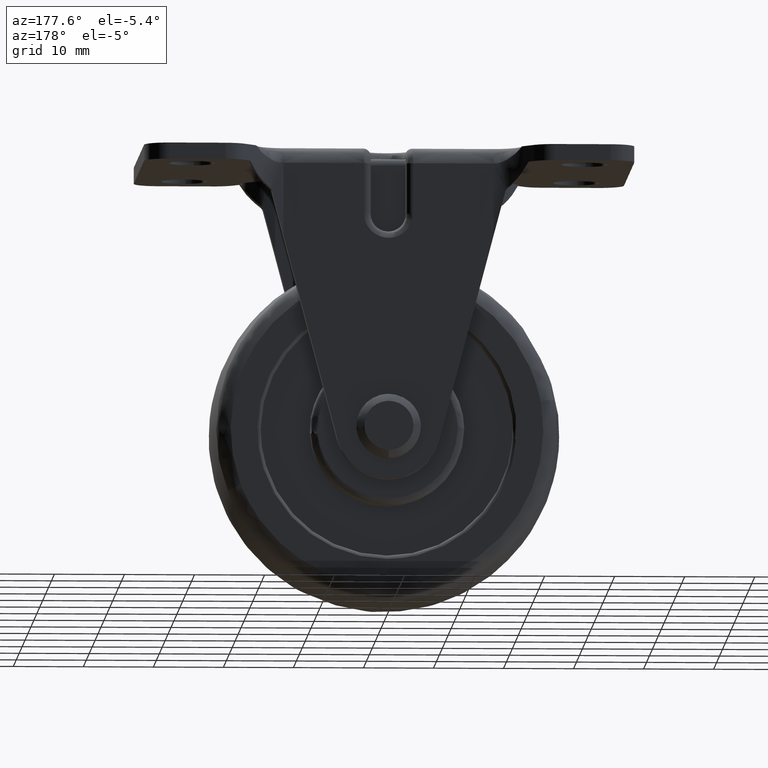
[diagram: clean part render]
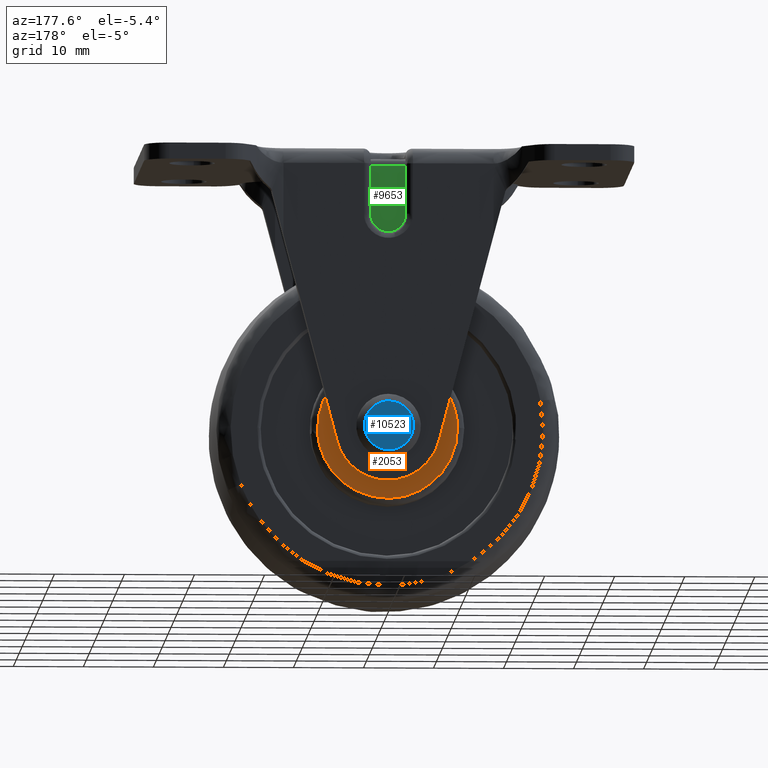
[diagram: same view with three faces highlighted in distinct colors, each labeled with its STEP entity id]
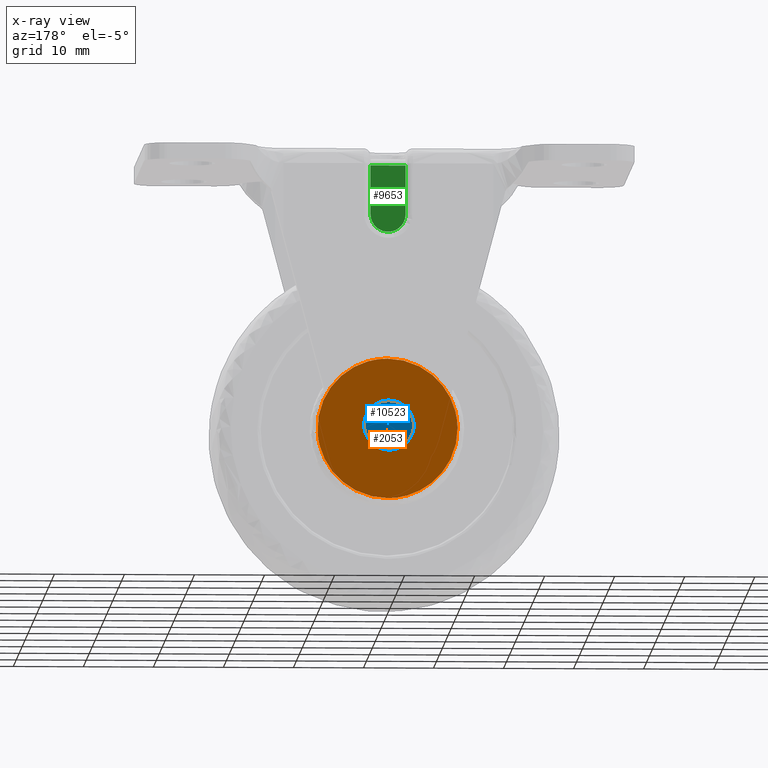
[diagram: x-ray of the same camera — body ghosted, the three highlighted faces saturated]
A machine part, auxiliary view with three faces highlighted in distinct colors.
The next image is the same camera in x-ray (body ghosted, the three faces saturated) — at least one of them is partly hidden behind the body in this view.
Their STEP definitions:

[orange] entity #2053 — the highlighted face is a freeform B-spline surface patch.
#316=CARTESIAN_POINT('',(-3.243938094858221,12.0,0.198407753696435));
#317=VERTEX_POINT('',#316);
#323=CARTESIAN_POINT('',(0.0,12.0,3.249999999999886));
#324=VERTEX_POINT('',#323);
#325=CARTESIAN_POINT('',(0.0,12.0,3.249999999999886));
#326=CARTESIAN_POINT('',(-3.057294717050315,12.000000000000002,3.249999999999887));
#327=CARTESIAN_POINT('',(-3.243938094858221,12.000000000000002,0.198407753696435));
#335=(BOUNDED_CURVE()B_SPLINE_CURVE(2,(#325,#326,#327),.UNSPECIFIED.,.F.,.U.)B_SPLINE_CURVE_WITH_KNOTS((3,3),(0.500000000000000,0.739332962219825),.UNSPECIFIED.)CURVE()GEOMETRIC_REPRESENTATION_ITEM()RATIONAL_B_SPLINE_CURVE((1.0,0.719603993309108,0.976072041625744))REPRESENTATION_ITEM(''));
#336=EDGE_CURVE('',#324,#317,#335,.T.);
#338=CARTESIAN_POINT('',(3.227280960663633,12.0,-0.383611262787298));
#339=VERTEX_POINT('',#338);
#340=CARTESIAN_POINT('',(3.227280960663633,11.999999999999996,-0.383611262787298));
#341=CARTESIAN_POINT('',(3.249999999999885,12.000000000000002,-0.192478389023164));
#342=CARTESIAN_POINT('',(3.249999999999885,12.0,1.211545E-015));
#343=CARTESIAN_POINT('',(3.249999999999886,12.0,3.249999999999886));
#344=CARTESIAN_POINT('',(0.0,12.0,3.249999999999886));
#352=(BOUNDED_CURVE()B_SPLINE_CURVE(2,(#340,#341,#342,#343,#344),.UNSPECIFIED.,.F.,.U.)B_SPLINE_CURVE_WITH_KNOTS((3,2,3),(0.229562473499636,0.250000000000000,0.500000000000000),.UNSPECIFIED.)CURVE()GEOMETRIC_REPRESENTATION_ITEM()RATIONAL_B_SPLINE_CURVE((0.956026754156509,0.976055948314892,1.0,0.707106781186548,1.0))REPRESENTATION_ITEM(''));
#353=EDGE_CURVE('',#339,#324,#352,.T.);
#397=CARTESIAN_POINT('',(0.0,12.0,-3.249999999999884));
#398=VERTEX_POINT('',#397);
#399=CARTESIAN_POINT('',(0.0,12.0,-3.249999999999884));
#400=CARTESIAN_POINT('',(2.886567209066496,12.0,-3.249999999999884));
#401=CARTESIAN_POINT('',(3.227280960663634,12.000000000000004,-0.383611262787298));
#409=(BOUNDED_CURVE()B_SPLINE_CURVE(2,(#399,#400,#401),.UNSPECIFIED.,.F.,.U.)B_SPLINE_CURVE_WITH_KNOTS((3,3),(0.0,0.229562473499636),.UNSPECIFIED.)CURVE()GEOMETRIC_REPRESENTATION_ITEM()RATIONAL_B_SPLINE_CURVE((1.0,0.731050832871655,0.956026754156509))REPRESENTATION_ITEM(''));
#410=EDGE_CURVE('',#398,#339,#409,.T.);
#412=CARTESIAN_POINT('',(-3.243938094858221,11.999999999999998,0.198407753696435));
#413=CARTESIAN_POINT('',(-3.249999999999885,12.000000000000005,0.099296480929151));
#414=CARTESIAN_POINT('',(-3.249999999999885,12.0,1.211545E-015));
#415=CARTESIAN_POINT('',(-3.249999999999886,12.0,-3.249999999999885));
#416=CARTESIAN_POINT('',(0.0,12.0,-3.249999999999884));
#424=(BOUNDED_CURVE()B_SPLINE_CURVE(2,(#412,#413,#414,#415,#416),.UNSPECIFIED.,.F.,.U.)B_SPLINE_CURVE_WITH_KNOTS((3,2,3),(0.739332962219824,0.750000000000000,1.0),.UNSPECIFIED.)CURVE()GEOMETRIC_REPRESENTATION_ITEM()RATIONAL_B_SPLINE_CURVE((0.976072041625743,0.987502787877439,1.0,0.707106781186548,1.0))REPRESENTATION_ITEM(''));
#425=EDGE_CURVE('',#317,#398,#424,.T.);
#1502=CARTESIAN_POINT('',(9.975656745032261,12.0,-0.697332516554283));
#1503=VERTEX_POINT('',#1502);
#1504=CARTESIAN_POINT('',(0.0,12.0,10.0));
#1505=VERTEX_POINT('',#1504);
#1506=CARTESIAN_POINT('',(9.975656745032261,12.000000000000002,-0.697332516554283));
#1507=CARTESIAN_POINT('',(10.0,12.000000000000002,-0.349091159083256));
#1508=CARTESIAN_POINT('',(10.0,12.0,1.211545E-015));
#1509=CARTESIAN_POINT('',(10.000000000000002,12.0,10.000000000000002));
#1510=CARTESIAN_POINT('',(0.0,12.0,10.0));
#1518=(BOUNDED_CURVE()B_SPLINE_CURVE(2,(#1506,#1507,#1508,#1509,#1510),.UNSPECIFIED.,.F.,.U.)B_SPLINE_CURVE_WITH_KNOTS((3,2,3),(0.237833686523587,0.250000000000000,0.500000000000000),.UNSPECIFIED.)CURVE()GEOMETRIC_REPRESENTATION_ITEM()RATIONAL_B_SPLINE_CURVE((0.972879876362642,0.985746277139199,1.0,0.707106781186548,1.0))REPRESENTATION_ITEM(''));
#1519=EDGE_CURVE('',#1503,#1505,#1518,.T.);
#1521=CARTESIAN_POINT('',(-9.999210447551022,12.0,0.125660399193958));
#1522=VERTEX_POINT('',#1521);
#1523=CARTESIAN_POINT('',(0.0,12.0,10.0));
#1524=CARTESIAN_POINT('',(-9.875119298498124,12.000000000000002,10.000000000000002));
#1525=CARTESIAN_POINT('',(-9.999210447551022,11.999999999999996,0.125660399193958));
#1533=(BOUNDED_CURVE()B_SPLINE_CURVE(2,(#1523,#1524,#1525),.UNSPECIFIED.,.F.,.U.)B_SPLINE_CURVE_WITH_KNOTS((3,3),(0.500000000000000,0.747784295911488),.UNSPECIFIED.)CURVE()GEOMETRIC_REPRESENTATION_ITEM()RATIONAL_B_SPLINE_CURVE((1.0,0.709702639996237,0.994854295620444))REPRESENTATION_ITEM(''));
#1534=EDGE_CURVE('',#1505,#1522,#1533,.T.);
#1592=CARTESIAN_POINT('',(0.0,12.0,-9.999999999999998));
#1593=VERTEX_POINT('',#1592);
#1594=CARTESIAN_POINT('',(0.0,12.0,-9.999999999999998));
#1595=CARTESIAN_POINT('',(9.325368472038500,12.0,-9.999999999999998));
#1596=CARTESIAN_POINT('',(9.975656745032261,12.000000000000002,-0.697332516554283));
#1604=(BOUNDED_CURVE()B_SPLINE_CURVE(2,(#1594,#1595,#1596),.UNSPECIFIED.,.F.,.U.)B_SPLINE_CURVE_WITH_KNOTS((3,3),(0.0,0.237833686523587),.UNSPECIFIED.)CURVE()GEOMETRIC_REPRESENTATION_ITEM()RATIONAL_B_SPLINE_CURVE((1.0,0.721360504047349,0.972879876362642))REPRESENTATION_ITEM(''));
#1605=EDGE_CURVE('',#1593,#1503,#1604,.T.);
#1611=CARTESIAN_POINT('',(-9.999210447551022,11.999999999999996,0.125660399193958));
#1612=CARTESIAN_POINT('',(-9.999999999999998,12.000000000000004,0.062832680210042));
#1613=CARTESIAN_POINT('',(-10.0,12.0,1.211545E-015));
#1614=CARTESIAN_POINT('',(-10.000000000000002,12.0,-9.999999999999998));
#1615=CARTESIAN_POINT('',(0.0,12.0,-9.999999999999998));
#1623=(BOUNDED_CURVE()B_SPLINE_CURVE(2,(#1611,#1612,#1613,#1614,#1615),.UNSPECIFIED.,.F.,.U.)B_SPLINE_CURVE_WITH_KNOTS((3,2,3),(0.747784295911488,0.750000000000000,1.0),.UNSPECIFIED.)CURVE()GEOMETRIC_REPRESENTATION_ITEM()RATIONAL_B_SPLINE_CURVE((0.994854295620444,0.997404141190311,1.0,0.707106781186548,1.0))REPRESENTATION_ITEM(''));
#1624=EDGE_CURVE('',#1522,#1593,#1623,.T.);
#2036=CARTESIAN_POINT('',(-10.998113992600180,12.0,10.998999961236120));
#2037=CARTESIAN_POINT('',(-10.998113992600180,12.0,-10.999000497677921));
#2038=CARTESIAN_POINT('',(10.997763379845830,12.0,10.998999961236120));
#2039=CARTESIAN_POINT('',(10.997763379845830,12.0,-10.999000497677921));
#2040=B_SPLINE_SURFACE_WITH_KNOTS('',1,1,((#2036,#2038),(#2037,#2039)),.UNSPECIFIED.,.F.,.F.,.U.,(2,2),(2,2),(0.0,21.998000458914039),(0.0,21.995877372446021),.UNSPECIFIED.);
#2041=ORIENTED_EDGE('',*,*,#1624,.F.);
#2042=ORIENTED_EDGE('',*,*,#1534,.F.);
#2043=ORIENTED_EDGE('',*,*,#1519,.F.);
#2044=ORIENTED_EDGE('',*,*,#1605,.F.);
#2045=EDGE_LOOP('',(#2041,#2042,#2043,#2044));
#2046=FACE_OUTER_BOUND('',#2045,.T.);
#2047=ORIENTED_EDGE('',*,*,#336,.T.);
#2048=ORIENTED_EDGE('',*,*,#425,.T.);
#2049=ORIENTED_EDGE('',*,*,#410,.T.);
#2050=ORIENTED_EDGE('',*,*,#353,.T.);
#2051=EDGE_LOOP('',(#2047,#2048,#2049,#2050));
#2052=FACE_BOUND('',#2051,.T.);
#2053=ADVANCED_FACE('',(#2046,#2052),#2040,.F.);

[blue] entity #10523 — the highlighted face is a freeform B-spline surface patch.
#10350=CARTESIAN_POINT('',(3.476589862550465,16.799988341856508,-0.404124701389166));
#10351=VERTEX_POINT('',#10350);
#10367=CARTESIAN_POINT('',(0.0,16.799990000000001,3.500000000000001));
#10368=VERTEX_POINT('',#10367);
#10369=CARTESIAN_POINT('',(3.476589862550466,16.799988341856508,-0.404124701389166));
#10370=CARTESIAN_POINT('',(3.499999149351042,16.799988384622075,-0.202740303084451));
#10371=CARTESIAN_POINT('',(3.499999174640562,16.799988432646739,0.000000095941182));
#10372=CARTESIAN_POINT('',(3.499999611225096,16.799989261718487,3.500000045191856));
#10373=CARTESIAN_POINT('',(0.0,16.799990000000001,3.500000000000001));
#10381=(BOUNDED_CURVE()B_SPLINE_CURVE(2,(#10369,#10370,#10371,#10372,#10373),.UNSPECIFIED.,.F.,.U.)B_SPLINE_CURVE_WITH_KNOTS((3,2,3),(0.229999999988174,0.250000000000000,0.500000000000000),.UNSPECIFIED.)CURVE()GEOMETRIC_REPRESENTATION_ITEM()RATIONAL_B_SPLINE_CURVE((0.956886118167383,0.976568542481068,1.0,0.707106781186547,1.0))REPRESENTATION_ITEM(''));
#10382=EDGE_CURVE('',#10351,#10368,#10381,.T.);
#10384=CARTESIAN_POINT('',(0.0,16.799989170931202,-3.499999560470218));
#10385=VERTEX_POINT('',#10384);
#10386=CARTESIAN_POINT('',(0.0,16.799990000000001,3.500000000000001));
#10387=CARTESIAN_POINT('',(-3.500000000000000,16.799990000000008,3.500000000000001));
#10388=CARTESIAN_POINT('',(-3.500000000000000,16.799990000000001,1.334820E-015));
#10389=CARTESIAN_POINT('',(-3.500000000000000,16.799990000000008,-3.499999999999998));
#10390=CARTESIAN_POINT('',(0.0,16.799989170931202,-3.499999560470218));
#10398=(BOUNDED_CURVE()B_SPLINE_CURVE(2,(#10386,#10387,#10388,#10389,#10390),.UNSPECIFIED.,.F.,.U.)B_SPLINE_CURVE_WITH_KNOTS((3,2,3),(0.500000000000000,0.750000000000000,1.0),.UNSPECIFIED.)CURVE()GEOMETRIC_REPRESENTATION_ITEM()RATIONAL_B_SPLINE_CURVE((1.0,0.707106781186547,1.0,0.707106781186547,1.0))REPRESENTATION_ITEM(''));
#10399=EDGE_CURVE('',#10368,#10385,#10398,.T.);
#10447=CARTESIAN_POINT('',(0.0,16.799989170931202,-3.499999560470218));
#10448=CARTESIAN_POINT('',(3.116720516090399,16.799988756393859,-3.499999729485781));
#10449=CARTESIAN_POINT('',(3.476589862550466,16.799988341856508,-0.404124701389166));
#10457=(BOUNDED_CURVE()B_SPLINE_CURVE(2,(#10447,#10448,#10449),.UNSPECIFIED.,.F.,.U.)B_SPLINE_CURVE_WITH_KNOTS((3,3),(0.0,0.229999999988174),.UNSPECIFIED.)CURVE()GEOMETRIC_REPRESENTATION_ITEM()RATIONAL_B_SPLINE_CURVE((1.0,0.730538238705479,0.956886118167383))REPRESENTATION_ITEM(''));
#10458=EDGE_CURVE('',#10385,#10351,#10457,.T.);
#10513=CARTESIAN_POINT('',(-3.849648992356716,16.799990000000001,3.849649964478132));
#10514=CARTESIAN_POINT('',(-3.849648992356716,16.799990000000001,-3.849649712702968));
#10515=CARTESIAN_POINT('',(3.849629278580594,16.799990000000001,3.849649964478132));
#10516=CARTESIAN_POINT('',(3.849629278580594,16.799990000000001,-3.849649712702967));
#10517=B_SPLINE_SURFACE_WITH_KNOTS('',1,1,((#10513,#10515),(#10514,#10516)),.UNSPECIFIED.,.F.,.F.,.U.,(2,2),(2,2),(0.0,7.699299677181099),(0.0,7.699278270937310),.UNSPECIFIED.);
#10518=ORIENTED_EDGE('',*,*,#10399,.F.);
#10519=ORIENTED_EDGE('',*,*,#10382,.F.);
#10520=ORIENTED_EDGE('',*,*,#10458,.F.);
#10521=EDGE_LOOP('',(#10518,#10519,#10520));
#10522=FACE_OUTER_BOUND('',#10521,.T.);
#10523=ADVANCED_FACE('',(#10522),#10517,.F.);

[green] entity #9653 — the highlighted face is a freeform B-spline surface patch.
#4623=CARTESIAN_POINT('',(-2.500000000000000,13.800002999999940,37.499998999999953));
#4624=VERTEX_POINT('',#4623);
#4645=CARTESIAN_POINT('',(2.500000000000085,13.800002999999940,37.499998999999953));
#4646=VERTEX_POINT('',#4645);
#4660=CARTESIAN_POINT('',(-2.500000000000000,13.800002999999940,37.499998999999953));
#4661=CARTESIAN_POINT('',(2.500000000000085,13.800002999999940,37.499998999999953));
#4662=QUASI_UNIFORM_CURVE('',1,(#4660,#4661),.UNSPECIFIED.,.F.,.U.);
#4663=EDGE_CURVE('',#4624,#4646,#4662,.T.);
#7294=CARTESIAN_POINT('',(2.500000000000085,13.800002999999940,30.500000000000000));
#7295=VERTEX_POINT('',#7294);
#7302=CARTESIAN_POINT('',(-2.500000000000000,13.800002999999940,30.500000000000000));
#7303=VERTEX_POINT('',#7302);
#7309=CARTESIAN_POINT('',(-2.500000000000000,13.800002999999940,30.500000000000000));
#7310=CARTESIAN_POINT('',(-2.500000000000000,13.800002999999943,27.999999999999996));
#7311=CARTESIAN_POINT('',(0.0,13.800002999999940,28.0));
#7312=CARTESIAN_POINT('',(2.500000000000000,13.800002999999943,27.999999999999996));
#7313=CARTESIAN_POINT('',(2.500000000000085,13.800002999999940,30.500000000000000));
#7321=(BOUNDED_CURVE()B_SPLINE_CURVE(2,(#7309,#7310,#7311,#7312,#7313),.UNSPECIFIED.,.F.,.U.)B_SPLINE_CURVE_WITH_KNOTS((3,2,3),(0.0,0.500000000000000,1.0),.UNSPECIFIED.)CURVE()GEOMETRIC_REPRESENTATION_ITEM()RATIONAL_B_SPLINE_CURVE((1.0,0.707106781186548,1.0,0.707106781186548,1.0))REPRESENTATION_ITEM(''));
#7322=EDGE_CURVE('',#7303,#7295,#7321,.T.);
#9634=CARTESIAN_POINT('',(-2.749749990309033,13.800002999999940,27.525475034422449));
#9635=CARTESIAN_POINT('',(2.749750124419570,13.800002999999940,27.525475034422449));
#9636=CARTESIAN_POINT('',(-2.749749990309033,13.800002999999940,37.974524899880493));
#9637=CARTESIAN_POINT('',(2.749750124419570,13.800002999999940,37.974524899880493));
#9638=B_SPLINE_SURFACE_WITH_KNOTS('',1,1,((#9634,#9636),(#9635,#9637)),.UNSPECIFIED.,.F.,.F.,.U.,(2,2),(2,2),(0.0,5.499500114728603),(0.0,10.449049865458029),.UNSPECIFIED.);
#9639=CARTESIAN_POINT('',(-2.500000000000000,13.800002999999940,30.500000000000000));
#9640=CARTESIAN_POINT('',(-2.500000000000000,13.800002999999940,37.499998999999953));
#9641=QUASI_UNIFORM_CURVE('',1,(#9639,#9640),.UNSPECIFIED.,.F.,.U.);
#9642=EDGE_CURVE('',#7303,#4624,#9641,.T.);
#9643=ORIENTED_EDGE('',*,*,#9642,.T.);
#9644=ORIENTED_EDGE('',*,*,#4663,.T.);
#9645=CARTESIAN_POINT('',(2.500000000000085,13.800002999999940,37.499998999999953));
#9646=CARTESIAN_POINT('',(2.500000000000085,13.800002999999940,30.500000000000000));
#9647=QUASI_UNIFORM_CURVE('',1,(#9645,#9646),.UNSPECIFIED.,.F.,.U.);
#9648=EDGE_CURVE('',#4646,#7295,#9647,.T.);
#9649=ORIENTED_EDGE('',*,*,#9648,.T.);
#9650=ORIENTED_EDGE('',*,*,#7322,.F.);
#9651=EDGE_LOOP('',(#9643,#9644,#9649,#9650));
#9652=FACE_OUTER_BOUND('',#9651,.T.);
#9653=ADVANCED_FACE('',(#9652),#9638,.F.);